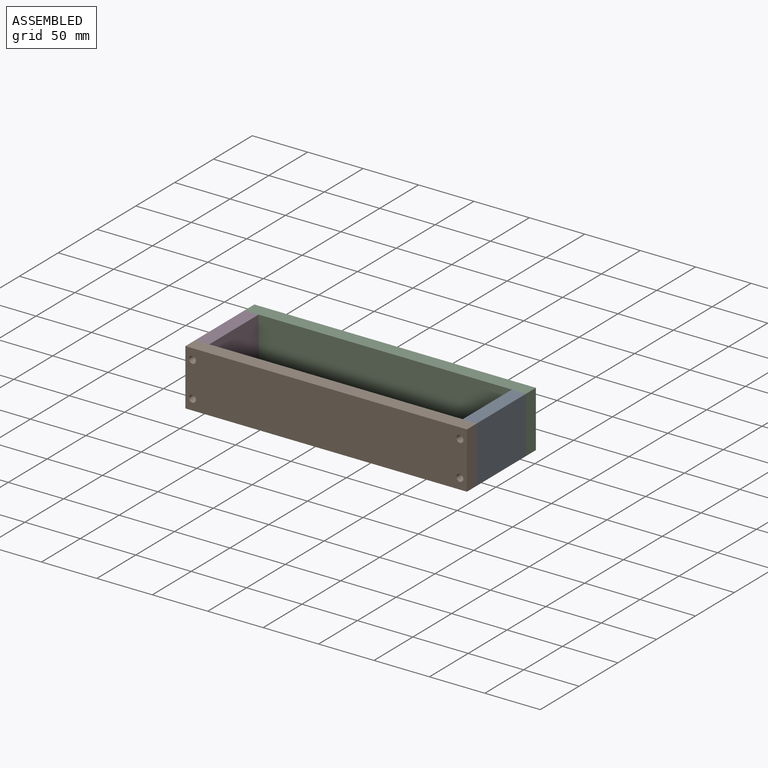
[diagram: assembled view]
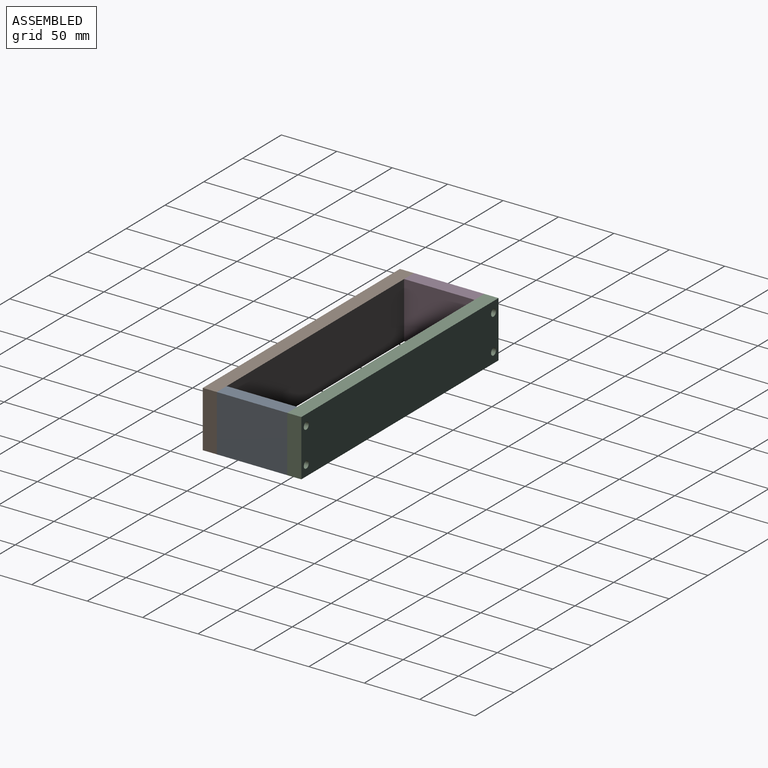
[diagram: assembled view, second angle]
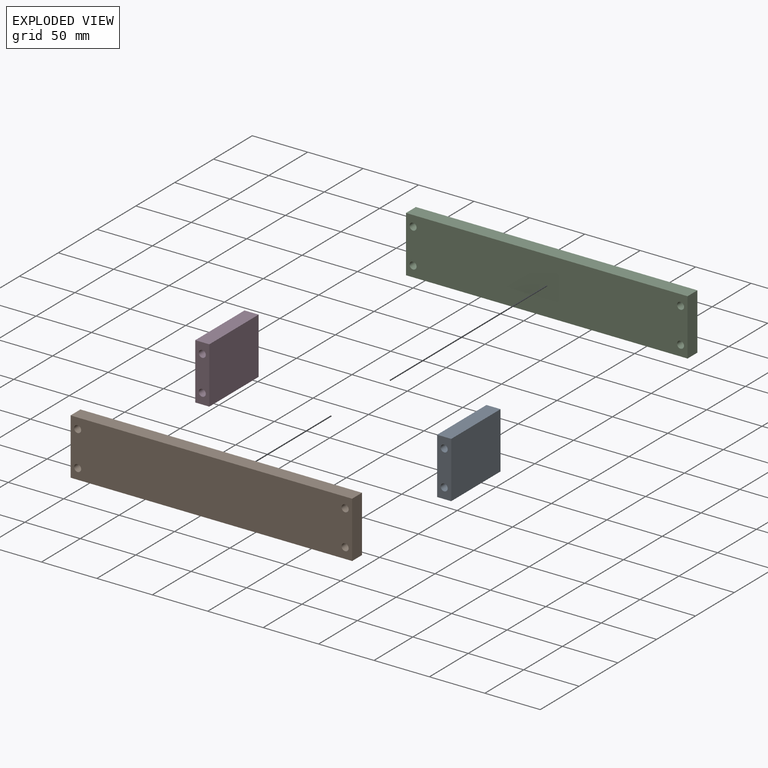
[diagram: exploded view]
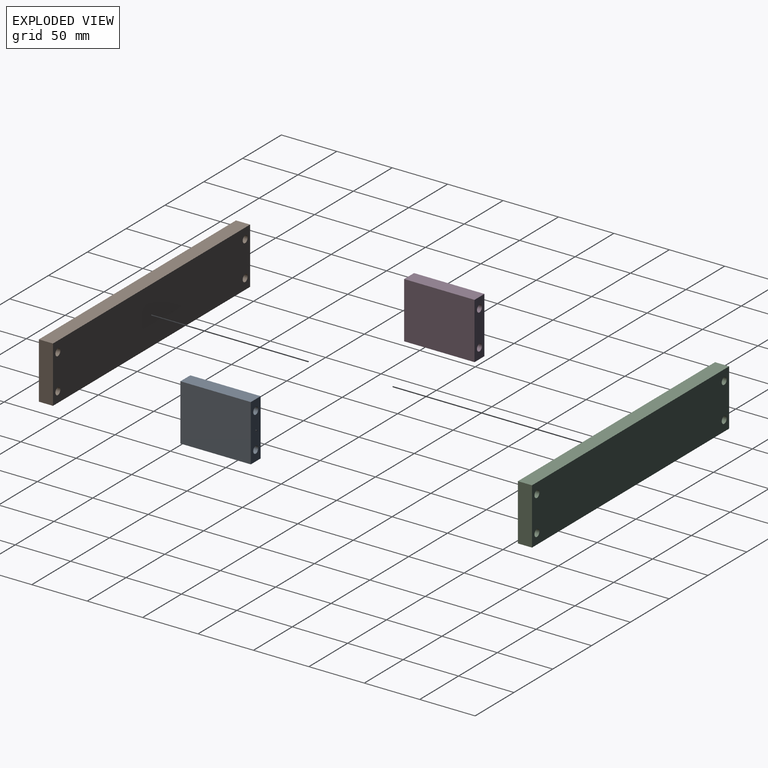
[diagram: exploded view, second angle]
ASSEMBLY  parts=4 mates=4
PART A: 8 faces, bbox 12.7x63.5x50.8 mm
  f0: plane 50.8x12.7mm, normal (0,-1,0), area 581.8mm2, adj f1,f3,f4,f5,f6,f7
  f1: plane 63.5x12.7mm, normal (0,0,-1), area 806.5mm2, adj f0,f2,f4,f5
  f2: plane 50.8x12.7mm, normal (0,1,0), area 581.8mm2, adj f1,f3,f4,f5,f6,f7
  f3: plane 63.5x12.7mm, normal (0,0,1), area 806.5mm2, adj f0,f2,f4,f5
  f4: plane 63.5x50.8mm, normal (1,0,0), area 3225.8mm2, adj f0,f1,f2,f3
  f5: plane 63.5x50.8mm, normal (-1,0,0), area 3225.8mm2, adj f0,f1,f2,f3
  f6: cylinder r=3.17mm len=63.5mm, axis (0,-1,0), area 1266.8mm2, adj f0,f2
  f7: cylinder r=3.17mm len=63.5mm, axis (0,-1,0), area 1266.8mm2, adj f0,f2
PART B: 10 faces, bbox 254x12.7x50.8 mm
  f0: plane 50.8x12.7mm, normal (-1,0,0), area 645.2mm2, adj f1,f3,f4,f5
  f1: plane 254x12.7mm, normal (0,0,-1), area 3225.8mm2, adj f0,f2,f4,f5
  f2: plane 50.8x12.7mm, normal (1,0,0), area 645.2mm2, adj f1,f3,f4,f5
  f3: plane 254x12.7mm, normal (0,0,1), area 3225.8mm2, adj f0,f2,f4,f5
  f4: plane 254x50.8mm, normal (0,1,0), area 12776.5mm2, adj f0,f1,f2,f3,f6,f7,f8,f9
  f5: plane 254x50.8mm, normal (0,-1,0), area 12776.5mm2, adj f0,f1,f2,f3,f6,f7,f8,f9
  f6: cylinder r=3.17mm len=12.7mm, axis (0,-1,0), area 253.4mm2, adj f4,f5
  f7: cylinder r=3.17mm len=12.7mm, axis (0,-1,0), area 253.4mm2, adj f4,f5
  f8: cylinder r=3.17mm len=12.7mm, axis (0,-1,0), area 253.4mm2, adj f4,f5
  f9: cylinder r=3.17mm len=12.7mm, axis (0,-1,0), area 253.4mm2, adj f4,f5
PART C: same geometry as B
PART D: same geometry as A
PLACE A t=(79.44,-31.79,-74.64)mm
PLACE B t=(-34.86,-76.24,-74.64)mm
PLACE C t=(-34.86,-0.04,-74.64)mm
PLACE D t=(-161.86,-31.79,-74.64)mm
MATE cylindrical C.f9 <-> D.f6  axis (0,-1,0) through (-155.51,-0.04,-58.76)mm
MATE cylindrical C.f6 <-> A.f6  axis (0,-1,0) through (85.79,-0.04,-58.76)mm
MATE cylindrical A.f6 <-> B.f6  axis (0,-1,0) through (85.79,-63.54,-58.76)mm
MATE cylindrical D.f6 <-> B.f9  axis (0,-1,0) through (-155.51,-63.54,-58.76)mm
